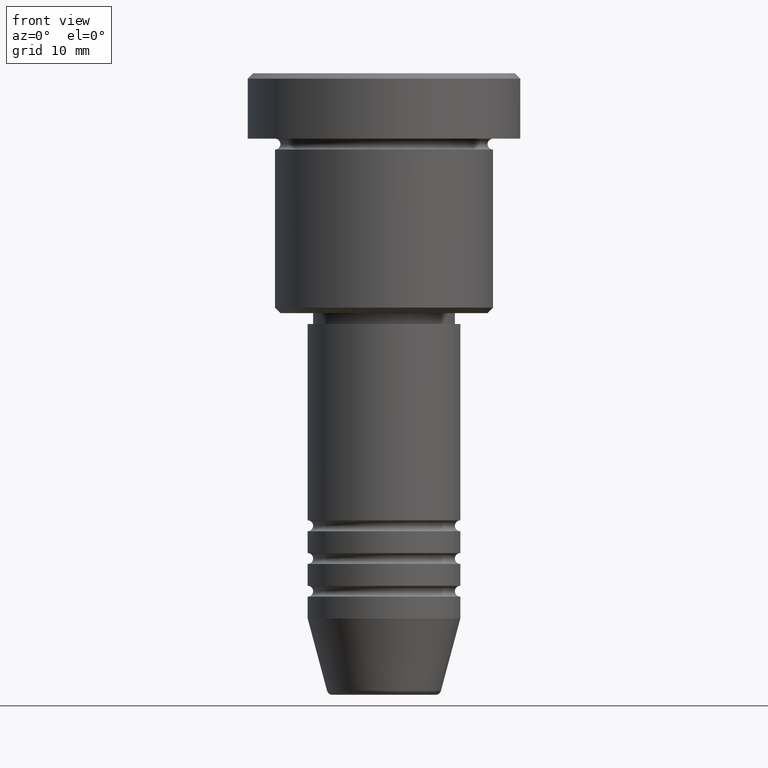
[diagram: clean part render]
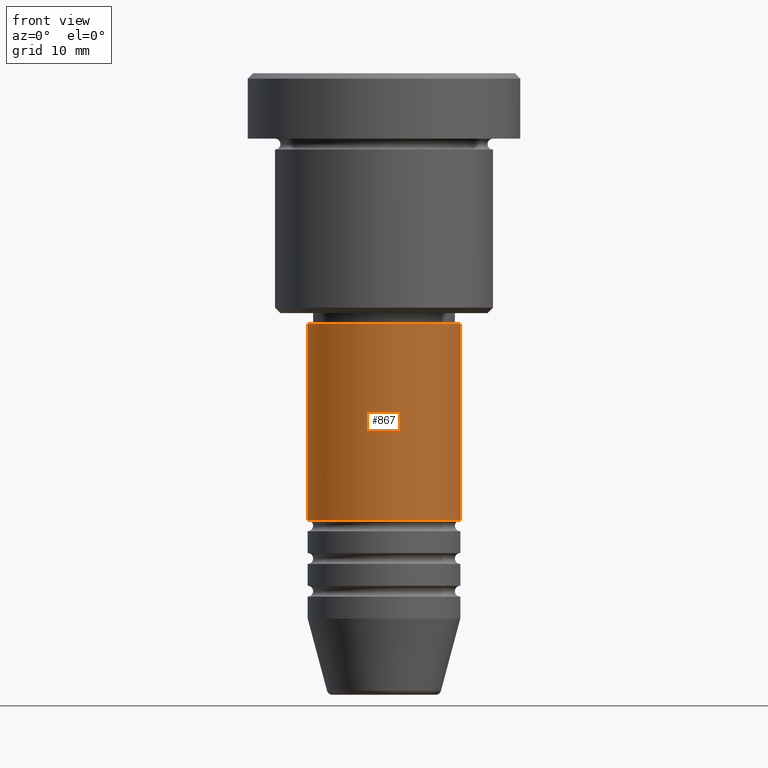
[diagram: same view with one face highlighted and labeled with its STEP entity id]
A machine part, front view. The second image highlights one B-rep face of the part: STEP entity #867.
In plain terms, the highlighted cylindrical surface (partial cylindrical patch) has radius 7 mm, axis along (-0, -0, 1).
Its self-contained STEP definition (entity closure, byte-faithful):
#17 = CARTESIAN_POINT ( 'NONE',  ( 0.000000000000000000, 0.000000000000000000, -23.00000000000000000 ) ) ;
#69 = CARTESIAN_POINT ( 'NONE',  ( -7.000000000000000000, 8.572527594031473190E-16, 0.000000000000000000 ) ) ;
#72 = FACE_OUTER_BOUND ( 'NONE', #545, .T. ) ;
#90 = VERTEX_POINT ( 'NONE', #601 ) ;
#165 = DIRECTION ( 'NONE',  ( 1.000000000000000000, 0.000000000000000000, 0.000000000000000000 ) ) ;
#189 = DIRECTION ( 'NONE',  ( 1.000000000000000000, 0.000000000000000000, 0.000000000000000000 ) ) ;
#213 = EDGE_CURVE ( 'NONE', #521, #403, #785, .T. ) ;
#250 = ORIENTED_EDGE ( 'NONE', *, *, #673, .F. ) ;
#254 = DIRECTION ( 'NONE',  ( -0.000000000000000000, -0.000000000000000000, 1.000000000000000000 ) ) ;
#295 = DIRECTION ( 'NONE',  ( -0.000000000000000000, -0.000000000000000000, 1.000000000000000000 ) ) ;
#353 = AXIS2_PLACEMENT_3D ( 'NONE', #17, #295, #189 ) ;
#403 = VERTEX_POINT ( 'NONE', #408 ) ;
#408 = CARTESIAN_POINT ( 'NONE',  ( -7.000000000000000000, 8.572527594031473190E-16, -23.00000000000000000 ) ) ;
#477 = DIRECTION ( 'NONE',  ( -0.000000000000000000, -0.000000000000000000, 1.000000000000000000 ) ) ;
#480 = CIRCLE ( 'NONE', #856, 7.000000000000000000 ) ;
#521 = VERTEX_POINT ( 'NONE', #661 ) ;
#529 = ORIENTED_EDGE ( 'NONE', *, *, #655, .T. ) ;
#545 = EDGE_LOOP ( 'NONE', ( #1054, #529, #1088, #250 ) ) ;
#552 = AXIS2_PLACEMENT_3D ( 'NONE', #616, #984, #165 ) ;
#601 = CARTESIAN_POINT ( 'NONE',  ( 7.000000000000000000, 0.000000000000000000, -23.00000000000000000 ) ) ;
#611 = CYLINDRICAL_SURFACE ( 'NONE', #552, 7.000000000000000000 ) ;
#616 = CARTESIAN_POINT ( 'NONE',  ( 0.000000000000000000, 0.000000000000000000, 0.000000000000000000 ) ) ;
#655 = EDGE_CURVE ( 'NONE', #521, #1093, #480, .T. ) ;
#661 = CARTESIAN_POINT ( 'NONE',  ( -7.000000000000000000, 8.572527594031473190E-16, -40.99999999999997868 ) ) ;
#673 = EDGE_CURVE ( 'NONE', #403, #90, #1147, .T. ) ;
#736 = CARTESIAN_POINT ( 'NONE',  ( 0.000000000000000000, 0.000000000000000000, -40.99999999999997868 ) ) ;
#785 = LINE ( 'NONE', #69, #884 ) ;
#830 = DIRECTION ( 'NONE',  ( 1.000000000000000000, 0.000000000000000000, 0.000000000000000000 ) ) ;
#856 = AXIS2_PLACEMENT_3D ( 'NONE', #736, #477, #830 ) ;
#859 = CARTESIAN_POINT ( 'NONE',  ( 7.000000000000000000, 0.000000000000000000, 0.000000000000000000 ) ) ;
#867 = ADVANCED_FACE ( 'NONE', ( #72 ), #611, .T. ) ;
#877 = CARTESIAN_POINT ( 'NONE',  ( 7.000000000000000000, 0.000000000000000000, -40.99999999999997868 ) ) ;
#884 = VECTOR ( 'NONE', #254, 1000.000000000000000 ) ;
#933 = LINE ( 'NONE', #859, #1061 ) ;
#965 = DIRECTION ( 'NONE',  ( -0.000000000000000000, -0.000000000000000000, 1.000000000000000000 ) ) ;
#984 = DIRECTION ( 'NONE',  ( -0.000000000000000000, -0.000000000000000000, 1.000000000000000000 ) ) ;
#1054 = ORIENTED_EDGE ( 'NONE', *, *, #213, .F. ) ;
#1061 = VECTOR ( 'NONE', #965, 1000.000000000000000 ) ;
#1088 = ORIENTED_EDGE ( 'NONE', *, *, #1171, .T. ) ;
#1093 = VERTEX_POINT ( 'NONE', #877 ) ;
#1147 = CIRCLE ( 'NONE', #353, 7.000000000000000000 ) ;
#1171 = EDGE_CURVE ( 'NONE', #1093, #90, #933, .T. ) ;